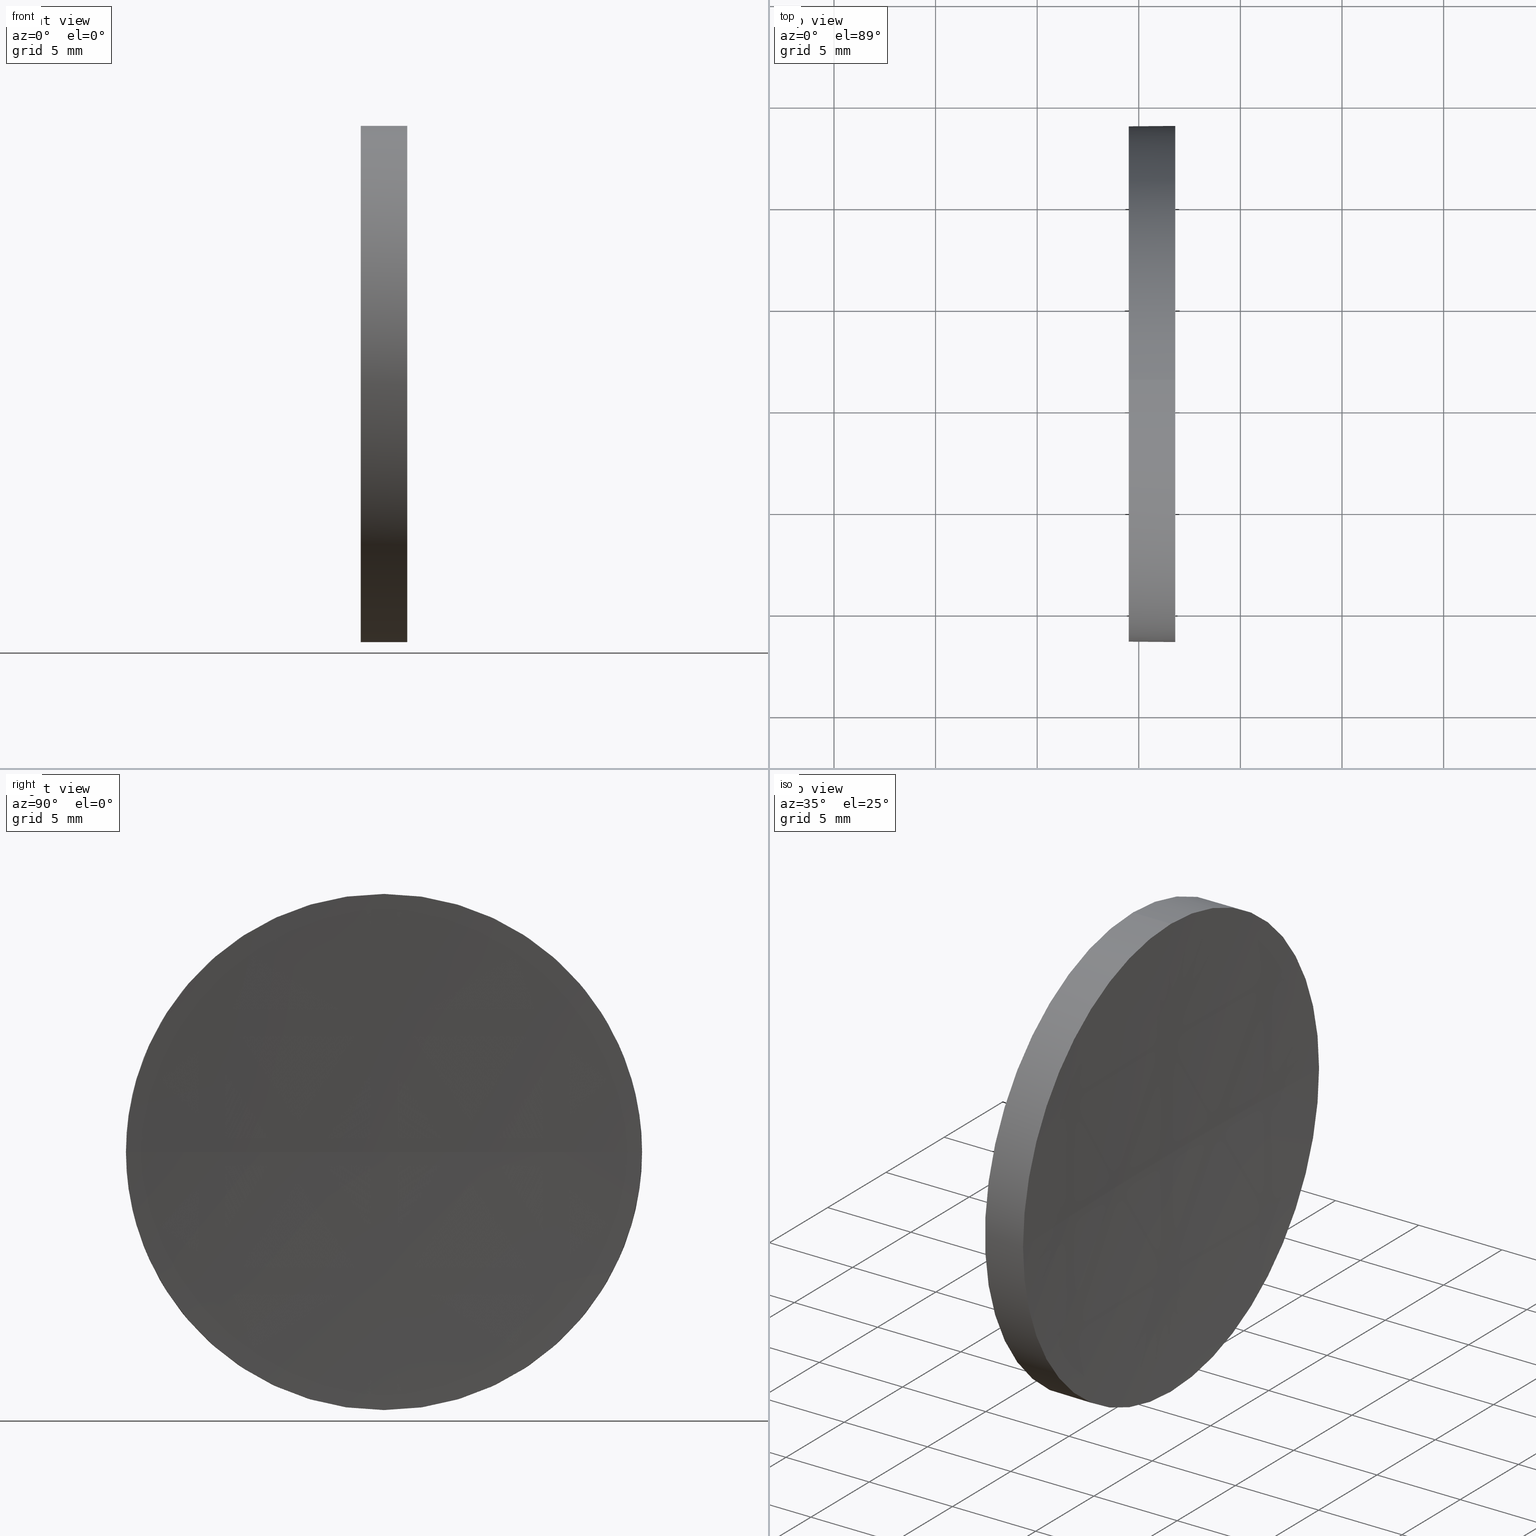
[diagram: canonical four-view strip — front | top / right | iso, engineering-drawing reading convention]
A machine part, canonical four-view strip (front | top / right | iso — engineering-drawing reading convention). The complete STEP part file that produces these views, byte-faithful:
ISO-10303-21;
HEADER;
FILE_DESCRIPTION (( 'STEP AP214' ),
    '1' );
FILE_NAME ('120324.STEP',
    '2019-06-27T05:58:14',
    ( '' ),
    ( '' ),
    'SwSTEP 2.0',
    'SolidWorks 2016',
    '' );
FILE_SCHEMA (( 'AUTOMOTIVE_DESIGN' ));
ENDSEC;

DATA;
#1 = DIRECTION ( 'NONE',  ( -1.000000000000000000, -0.0000000000000000000, -0.0000000000000000000 ) ) ;
#2 = ORIENTED_EDGE ( 'NONE', *, *, #46, .T. ) ;
#3 = VECTOR ( 'NONE', #42, 1000.000000000000000 ) ;
#4 = ORIENTED_EDGE ( 'NONE', *, *, #55, .F. ) ;
#5 = SURFACE_SIDE_STYLE ('',( #133 ) ) ;
#6 = CARTESIAN_POINT ( 'NONE',  ( 402.0068341785477100, 71.19398908659368900, 0.0000000000000000000 ) ) ;
#7 = DIRECTION ( 'NONE',  ( 0.0000000000000000000, 0.0000000000000000000, -1.000000000000000000 ) ) ;
#8 = STYLED_ITEM ( 'NONE', ( #12 ), #26 ) ;
#9 = VECTOR ( 'NONE', #117, 1000.000000000000000 ) ;
#10 = FILL_AREA_STYLE_COLOUR ( '', #31 ) ;
#11 = ORIENTED_EDGE ( 'NONE', *, *, #156, .F. ) ;
#12 = PRESENTATION_STYLE_ASSIGNMENT (( #108 ) ) ;
#13 = DIRECTION ( 'NONE',  ( -1.000000000000000000, -0.0000000000000000000, -0.0000000000000000000 ) ) ;
#14 = CIRCLE ( 'NONE', #74, 280.4999999999999400 ) ;
#15 = ORIENTED_EDGE ( 'NONE', *, *, #62, .F. ) ;
#16 = SURFACE_STYLE_FILL_AREA ( #82 ) ;
#17 = DIRECTION ( 'NONE',  ( 0.0000000000000000000, 0.0000000000000000000, 1.000000000000000000 ) ) ;
#18 = ADVANCED_FACE ( 'NONE', ( #180 ), #49, .F. ) ;
#19 = CARTESIAN_POINT ( 'NONE',  ( 121.7944861280022900, 71.19398908659370300, 0.0000000000000000000 ) ) ;
#20 = PRESENTATION_LAYER_ASSIGNMENT (  '', '', ( #8 ) ) ;
#21 = FILL_AREA_STYLE_COLOUR ( '', #88 ) ;
#22 = DIRECTION ( 'NONE',  ( 0.0000000000000000000, 0.0000000000000000000, 1.000000000000000000 ) ) ;
#23 = CARTESIAN_POINT ( 'NONE',  ( 121.5068341785477300, 71.19398908659370300, 0.0000000000000000000 ) ) ;
#24 = CARTESIAN_POINT ( 'NONE',  ( 121.7944861280022900, 71.19398908659370300, 0.0000000000000000000 ) ) ;
#25 = AXIS2_PLACEMENT_3D ( 'NONE', #100, #80, #7 ) ;
#26 = MANIFOLD_SOLID_BREP ( '��ת1', #165 ) ;
#27 = ORIENTED_EDGE ( 'NONE', *, *, #44, .F. ) ;
#28 = DIRECTION ( 'NONE',  ( 0.0000000000000000000, 0.0000000000000000000, 1.000000000000000000 ) ) ;
#29 = ORIENTED_EDGE ( 'NONE', *, *, #62, .T. ) ;
#30 =( NAMED_UNIT ( * ) SI_UNIT ( $, .STERADIAN. ) SOLID_ANGLE_UNIT ( ) );
#31 = COLOUR_RGB ( '',1.000000000000000000, 1.000000000000000000, 1.000000000000000000 ) ;
#32 = EDGE_CURVE ( 'NONE', #161, #144, #14, .T. ) ;
#33 =( LENGTH_UNIT ( ) NAMED_UNIT ( * ) SI_UNIT ( .MILLI., .METRE. ) );
#34 = DIRECTION ( 'NONE',  ( 1.000000000000000000, 0.0000000000000000000, 0.0000000000000000000 ) ) ;
#35 = VERTEX_POINT ( 'NONE', #60 ) ;
#36 = SURFACE_STYLE_USAGE ( .BOTH. , #52 ) ;
#37 = FACE_OUTER_BOUND ( 'NONE', #39, .T. ) ;
#38 = DIRECTION ( 'NONE',  ( 0.0000000000000000000, 0.0000000000000000000, 1.000000000000000000 ) ) ;
#39 = EDGE_LOOP ( 'NONE', ( #86, #118, #81, #97 ) ) ;
#40 = LINE ( 'NONE', #184, #3 ) ;
#41 = ORIENTED_EDGE ( 'NONE', *, *, #66, .F. ) ;
#42 = DIRECTION ( 'NONE',  ( -1.000000000000000000, -0.0000000000000000000, -0.0000000000000000000 ) ) ;
#43 = ADVANCED_FACE ( 'NONE', ( #37 ), #75, .F. ) ;
#44 = EDGE_CURVE ( 'NONE', #35, #76, #148, .T. ) ;
#45 = CIRCLE ( 'NONE', #79, 12.70000000000000300 ) ;
#46 = EDGE_CURVE ( 'NONE', #115, #161, #164, .T. ) ;
#47 = ORIENTED_EDGE ( 'NONE', *, *, #66, .T. ) ;
#48 = UNCERTAINTY_MEASURE_WITH_UNIT (LENGTH_MEASURE( 1.000000000000000100E-005 ), #51, 'distance_accuracy_value', 'NONE');
#49 = SPHERICAL_SURFACE ( 'NONE', #119, 280.5000000000000000 ) ;
#50 = FILL_AREA_STYLE ('',( #21 ) ) ;
#51 =( LENGTH_UNIT ( ) NAMED_UNIT ( * ) SI_UNIT ( .MILLI., .METRE. ) );
#52 = SURFACE_SIDE_STYLE ('',( #16 ) ) ;
#53 = ORIENTED_EDGE ( 'NONE', *, *, #89, .T. ) ;
#54 = FACE_OUTER_BOUND ( 'NONE', #61, .T. ) ;
#55 = EDGE_CURVE ( 'NONE', #76, #35, #45, .T. ) ;
#56 = DIRECTION ( 'NONE',  ( -1.000000000000000000, -0.0000000000000000000, -0.0000000000000000000 ) ) ;
#57 = AXIS2_PLACEMENT_3D ( 'NONE', #6, #167, #83 ) ;
#58 = DIRECTION ( 'NONE',  ( 0.0000000000000000000, 0.0000000000000000000, 1.000000000000000000 ) ) ;
#59 =( GEOMETRIC_REPRESENTATION_CONTEXT ( 3 ) GLOBAL_UNCERTAINTY_ASSIGNED_CONTEXT ( ( #181 ) ) GLOBAL_UNIT_ASSIGNED_CONTEXT ( ( #151, #126, #30 ) ) REPRESENTATION_CONTEXT ( 'NONE', 'WORKASPACE' ) );
#60 = CARTESIAN_POINT ( 'NONE',  ( 119.5068341785477100, 71.19398908659370300, -12.70000000000000300 ) ) ;
#61 = EDGE_LOOP ( 'NONE', ( #120, #131 ) ) ;
#62 = EDGE_CURVE ( 'NONE', #136, #35, #128, .T. ) ;
#63 = CARTESIAN_POINT ( 'NONE',  ( 0.0000000000000000000, 0.0000000000000000000, 0.0000000000000000000 ) ) ;
#64 = DIRECTION ( 'NONE',  ( -1.000000000000000000, -0.0000000000000000000, -0.0000000000000000000 ) ) ;
#65 =( GEOMETRIC_REPRESENTATION_CONTEXT ( 3 ) GLOBAL_UNCERTAINTY_ASSIGNED_CONTEXT ( ( #48 ) ) GLOBAL_UNIT_ASSIGNED_CONTEXT ( ( #51, #112, #152 ) ) REPRESENTATION_CONTEXT ( 'NONE', 'WORKASPACE' ) );
#66 = EDGE_CURVE ( 'NONE', #161, #136, #84, .T. ) ;
#67 = CARTESIAN_POINT ( 'NONE',  ( 111.9552297575605700, 71.19398908659370300, -12.70000000000000300 ) ) ;
#68 = DIRECTION ( 'NONE',  ( -1.000000000000000000, -0.0000000000000000000, -0.0000000000000000000 ) ) ;
#69 = EDGE_LOOP ( 'NONE', ( #154, #11, #41, #186 ) ) ;
#70 = DIRECTION ( 'NONE',  ( -1.000000000000000000, -0.0000000000000000000, -0.0000000000000000000 ) ) ;
#71 = APPLICATION_CONTEXT ( 'automotive_design' ) ;
#72 = CYLINDRICAL_SURFACE ( 'NONE', #139, 12.70000000000000300 ) ;
#73 = EDGE_LOOP ( 'NONE', ( #15, #95, #53, #125, #27 ) ) ;
#74 = AXIS2_PLACEMENT_3D ( 'NONE', #113, #22, #34 ) ;
#75 = SPHERICAL_SURFACE ( 'NONE', #57, 280.5000000000000000 ) ;
#76 = VERTEX_POINT ( 'NONE', #163 ) ;
#77 = SHAPE_DEFINITION_REPRESENTATION ( #85, #87 ) ;
#78 = CARTESIAN_POINT ( 'NONE',  ( 402.0068341785477100, 71.19398908659368900, 0.0000000000000000000 ) ) ;
#79 = AXIS2_PLACEMENT_3D ( 'NONE', #104, #13, #135 ) ;
#80 = DIRECTION ( 'NONE',  ( 1.000000000000000000, 0.0000000000000000000, 0.0000000000000000000 ) ) ;
#81 = ORIENTED_EDGE ( 'NONE', *, *, #32, .F. ) ;
#82 = FILL_AREA_STYLE ('',( #10 ) ) ;
#83 = DIRECTION ( 'NONE',  ( 0.0000000000000000000, 1.000000000000000000, 0.0000000000000000000 ) ) ;
#84 = CIRCLE ( 'NONE', #132, 12.70000000000000300 ) ;
#85 = PRODUCT_DEFINITION_SHAPE ( 'NONE', 'NONE',  #182 ) ;
#86 = ORIENTED_EDGE ( 'NONE', *, *, #89, .F. ) ;
#87 = ADVANCED_BREP_SHAPE_REPRESENTATION ( '120324', ( #26, #105 ), #147 ) ;
#88 = COLOUR_RGB ( '',1.000000000000000000, 1.000000000000000000, 1.000000000000000000 ) ;
#89 = EDGE_CURVE ( 'NONE', #172, #115, #155, .T. ) ;
#90 = CIRCLE ( 'NONE', #166, 280.5000000000000000 ) ;
#91 = PRODUCT_CONTEXT ( 'NONE', #140, 'mechanical' ) ;
#92 = AXIS2_PLACEMENT_3D ( 'NONE', #24, #68, #38 ) ;
#93 = EDGE_LOOP ( 'NONE', ( #47, #29, #4, #157, #2 ) ) ;
#94 = PRESENTATION_STYLE_ASSIGNMENT (( #36 ) ) ;
#95 = ORIENTED_EDGE ( 'NONE', *, *, #156, .T. ) ;
#96 = AXIS2_PLACEMENT_3D ( 'NONE', #19, #123, #17 ) ;
#97 = ORIENTED_EDGE ( 'NONE', *, *, #46, .F. ) ;
#98 = DIRECTION ( 'NONE',  ( 0.0000000000000000000, 1.000000000000000000, 0.0000000000000000000 ) ) ;
#99 = PRODUCT_DEFINITION_FORMATION_WITH_SPECIFIED_SOURCE ( '�κ�', '', #185, .NOT_KNOWN. ) ;
#100 = CARTESIAN_POINT ( 'NONE',  ( 119.5068341785477100, 71.19398908659370300, 0.0000000000000000000 ) ) ;
#101 =( NAMED_UNIT ( * ) PLANE_ANGLE_UNIT ( ) SI_UNIT ( $, .RADIAN. ) );
#102 = CARTESIAN_POINT ( 'NONE',  ( 121.7944861280023000, 83.89398908659332200, 0.0000000000000000000 ) ) ;
#103 = MECHANICAL_DESIGN_GEOMETRIC_PRESENTATION_REPRESENTATION (  '', ( #8 ), #59 ) ;
#104 = CARTESIAN_POINT ( 'NONE',  ( 119.5068341785477100, 71.19398908659370300, 0.0000000000000000000 ) ) ;
#105 = AXIS2_PLACEMENT_3D ( 'NONE', #63, #169, #153 ) ;
#106 = DIRECTION ( 'NONE',  ( 0.0000000000000000000, 1.000000000000000000, 1.224646799147353000E-016 ) ) ;
#107 = EDGE_CURVE ( 'NONE', #172, #144, #90, .T. ) ;
#108 = SURFACE_STYLE_USAGE ( .BOTH. , #5 ) ;
#109 = EDGE_CURVE ( 'NONE', #115, #76, #40, .T. ) ;
#110 = FACE_OUTER_BOUND ( 'NONE', #73, .T. ) ;
#111 = CARTESIAN_POINT ( 'NONE',  ( 121.7944861280022900, 71.19398908659370300, -12.70000000000000300 ) ) ;
#112 =( NAMED_UNIT ( * ) PLANE_ANGLE_UNIT ( ) SI_UNIT ( $, .RADIAN. ) );
#113 = CARTESIAN_POINT ( 'NONE',  ( 402.0068341785477100, 71.19398908659368900, 0.0000000000000000000 ) ) ;
#114 = CARTESIAN_POINT ( 'NONE',  ( 121.7944861280022900, 71.19398908659370300, 0.0000000000000000000 ) ) ;
#115 = VERTEX_POINT ( 'NONE', #137 ) ;
#116 = PRODUCT_RELATED_PRODUCT_CATEGORY ( 'part', '', ( #185 ) ) ;
#117 = DIRECTION ( 'NONE',  ( -1.000000000000000000, -0.0000000000000000000, -0.0000000000000000000 ) ) ;
#118 = ORIENTED_EDGE ( 'NONE', *, *, #107, .T. ) ;
#119 = AXIS2_PLACEMENT_3D ( 'NONE', #78, #175, #98 ) ;
#120 = ORIENTED_EDGE ( 'NONE', *, *, #55, .T. ) ;
#121 = CARTESIAN_POINT ( 'NONE',  ( 121.7944861280022900, 71.19398908659370300, 0.0000000000000000000 ) ) ;
#122 = ADVANCED_FACE ( 'NONE', ( #54 ), #170, .F. ) ;
#123 = DIRECTION ( 'NONE',  ( -1.000000000000000000, -0.0000000000000000000, -0.0000000000000000000 ) ) ;
#124 = AXIS2_PLACEMENT_3D ( 'NONE', #171, #56, #159 ) ;
#125 = ORIENTED_EDGE ( 'NONE', *, *, #109, .T. ) ;
#126 =( NAMED_UNIT ( * ) PLANE_ANGLE_UNIT ( ) SI_UNIT ( $, .RADIAN. ) );
#127 = DIRECTION ( 'NONE',  ( 0.0000000000000000000, 0.0000000000000000000, 1.000000000000000000 ) ) ;
#128 = LINE ( 'NONE', #67, #9 ) ;
#129 =( NAMED_UNIT ( * ) SI_UNIT ( $, .STERADIAN. ) SOLID_ANGLE_UNIT ( ) );
#130 = DIRECTION ( 'NONE',  ( -1.000000000000000000, -0.0000000000000000000, -0.0000000000000000000 ) ) ;
#131 = ORIENTED_EDGE ( 'NONE', *, *, #44, .T. ) ;
#132 = AXIS2_PLACEMENT_3D ( 'NONE', #121, #1, #58 ) ;
#133 = SURFACE_STYLE_FILL_AREA ( #50 ) ;
#134 = AXIS2_PLACEMENT_3D ( 'NONE', #114, #130, #28 ) ;
#135 = DIRECTION ( 'NONE',  ( 0.0000000000000000000, 0.0000000000000000000, 1.000000000000000000 ) ) ;
#136 = VERTEX_POINT ( 'NONE', #111 ) ;
#137 = CARTESIAN_POINT ( 'NONE',  ( 121.7944861280022900, 71.19398908659370300, 12.70000000000000300 ) ) ;
#138 = STYLED_ITEM ( 'NONE', ( #94 ), #87 ) ;
#139 = AXIS2_PLACEMENT_3D ( 'NONE', #176, #64, #127 ) ;
#140 = APPLICATION_CONTEXT ( 'automotive_design' ) ;
#141 = CARTESIAN_POINT ( 'NONE',  ( 121.7944861280023000, 58.49398908659407700, -1.555301434917091100E-015 ) ) ;
#142 = PRODUCT_DEFINITION_CONTEXT ( 'detailed design', #71, 'design' ) ;
#143 = CIRCLE ( 'NONE', #134, 12.70000000000000300 ) ;
#144 = VERTEX_POINT ( 'NONE', #23 ) ;
#145 = ADVANCED_FACE ( 'NONE', ( #160 ), #72, .T. ) ;
#146 = CARTESIAN_POINT ( 'NONE',  ( 402.0068341785477100, 71.19398908659368900, 0.0000000000000000000 ) ) ;
#147 =( GEOMETRIC_REPRESENTATION_CONTEXT ( 3 ) GLOBAL_UNCERTAINTY_ASSIGNED_CONTEXT ( ( #149 ) ) GLOBAL_UNIT_ASSIGNED_CONTEXT ( ( #33, #101, #129 ) ) REPRESENTATION_CONTEXT ( 'NONE', 'WORKASPACE' ) );
#148 = CIRCLE ( 'NONE', #124, 12.70000000000000300 ) ;
#149 = UNCERTAINTY_MEASURE_WITH_UNIT (LENGTH_MEASURE( 1.000000000000000100E-005 ), #33, 'distance_accuracy_value', 'NONE');
#150 = DIRECTION ( 'NONE',  ( 0.0000000000000000000, 0.0000000000000000000, 1.000000000000000000 ) ) ;
#151 =( LENGTH_UNIT ( ) NAMED_UNIT ( * ) SI_UNIT ( .MILLI., .METRE. ) );
#152 =( NAMED_UNIT ( * ) SI_UNIT ( $, .STERADIAN. ) SOLID_ANGLE_UNIT ( ) );
#153 = DIRECTION ( 'NONE',  ( 1.000000000000000000, 0.0000000000000000000, 0.0000000000000000000 ) ) ;
#154 = ORIENTED_EDGE ( 'NONE', *, *, #107, .F. ) ;
#155 = CIRCLE ( 'NONE', #96, 12.70000000000000300 ) ;
#156 = EDGE_CURVE ( 'NONE', #136, #172, #143, .T. ) ;
#157 = ORIENTED_EDGE ( 'NONE', *, *, #109, .F. ) ;
#158 = AXIS2_PLACEMENT_3D ( 'NONE', #179, #70, #150 ) ;
#159 = DIRECTION ( 'NONE',  ( 0.0000000000000000000, 0.0000000000000000000, 1.000000000000000000 ) ) ;
#160 = FACE_OUTER_BOUND ( 'NONE', #93, .T. ) ;
#161 = VERTEX_POINT ( 'NONE', #102 ) ;
#162 = APPLICATION_PROTOCOL_DEFINITION ( 'draft international standard', 'automotive_design', 1998, #71 ) ;
#163 = CARTESIAN_POINT ( 'NONE',  ( 119.5068341785477100, 71.19398908659370300, 12.70000000000000300 ) ) ;
#164 = CIRCLE ( 'NONE', #92, 12.70000000000000300 ) ;
#165 = CLOSED_SHELL ( 'NONE', ( #145, #43, #18, #174, #122 ) ) ;
#166 = AXIS2_PLACEMENT_3D ( 'NONE', #146, #173, #106 ) ;
#167 = DIRECTION ( 'NONE',  ( 0.0000000000000000000, 0.0000000000000000000, -1.000000000000000000 ) ) ;
#168 = PRESENTATION_LAYER_ASSIGNMENT (  '', '', ( #138 ) ) ;
#169 = DIRECTION ( 'NONE',  ( 0.0000000000000000000, 0.0000000000000000000, 1.000000000000000000 ) ) ;
#170 = PLANE ( 'NONE',  #25 ) ;
#171 = CARTESIAN_POINT ( 'NONE',  ( 119.5068341785477100, 71.19398908659370300, 0.0000000000000000000 ) ) ;
#172 = VERTEX_POINT ( 'NONE', #141 ) ;
#173 = DIRECTION ( 'NONE',  ( 0.0000000000000000000, 1.224646799147353200E-016, -1.000000000000000000 ) ) ;
#174 = ADVANCED_FACE ( 'NONE', ( #110 ), #177, .T. ) ;
#175 = DIRECTION ( 'NONE',  ( 0.0000000000000000000, 0.0000000000000000000, -1.000000000000000000 ) ) ;
#176 = CARTESIAN_POINT ( 'NONE',  ( 111.9552297575605700, 71.19398908659370300, 0.0000000000000000000 ) ) ;
#177 = CYLINDRICAL_SURFACE ( 'NONE', #158, 12.70000000000000300 ) ;
#178 = APPLICATION_PROTOCOL_DEFINITION ( 'draft international standard', 'automotive_design', 1998, #140 ) ;
#179 = CARTESIAN_POINT ( 'NONE',  ( 111.9552297575605700, 71.19398908659370300, 0.0000000000000000000 ) ) ;
#180 = FACE_OUTER_BOUND ( 'NONE', #69, .T. ) ;
#181 = UNCERTAINTY_MEASURE_WITH_UNIT (LENGTH_MEASURE( 1.000000000000000100E-005 ), #151, 'distance_accuracy_value', 'NONE');
#182 = PRODUCT_DEFINITION ( 'δ֪', '', #99, #142 ) ;
#183 = MECHANICAL_DESIGN_GEOMETRIC_PRESENTATION_REPRESENTATION (  '', ( #138 ), #65 ) ;
#184 = CARTESIAN_POINT ( 'NONE',  ( 111.9552297575605700, 71.19398908659370300, 12.70000000000000300 ) ) ;
#185 = PRODUCT ( '120324', '120324', '', ( #91 ) ) ;
#186 = ORIENTED_EDGE ( 'NONE', *, *, #32, .T. ) ;
ENDSEC;
END-ISO-10303-21;
